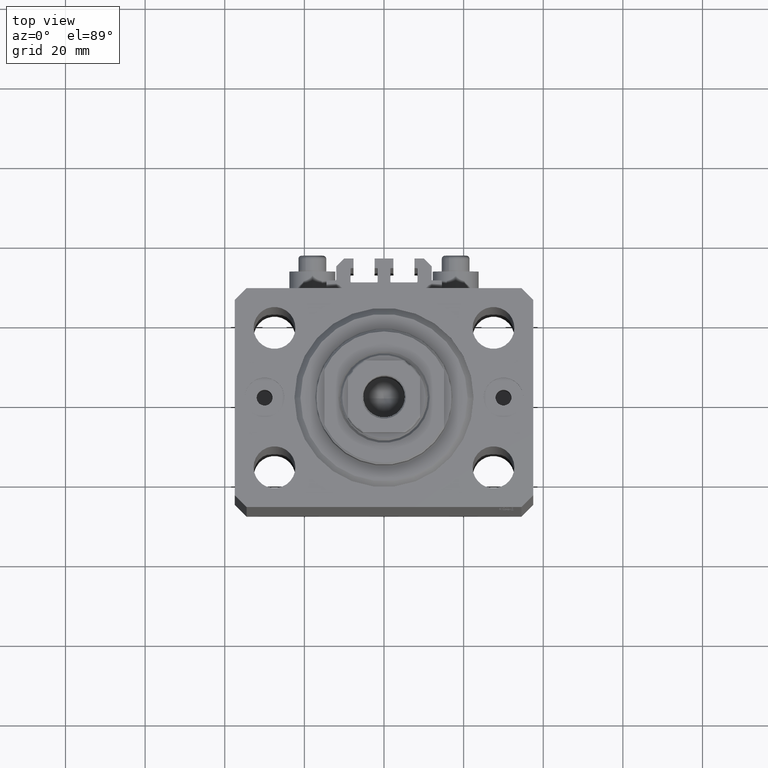
[diagram: clean part render]
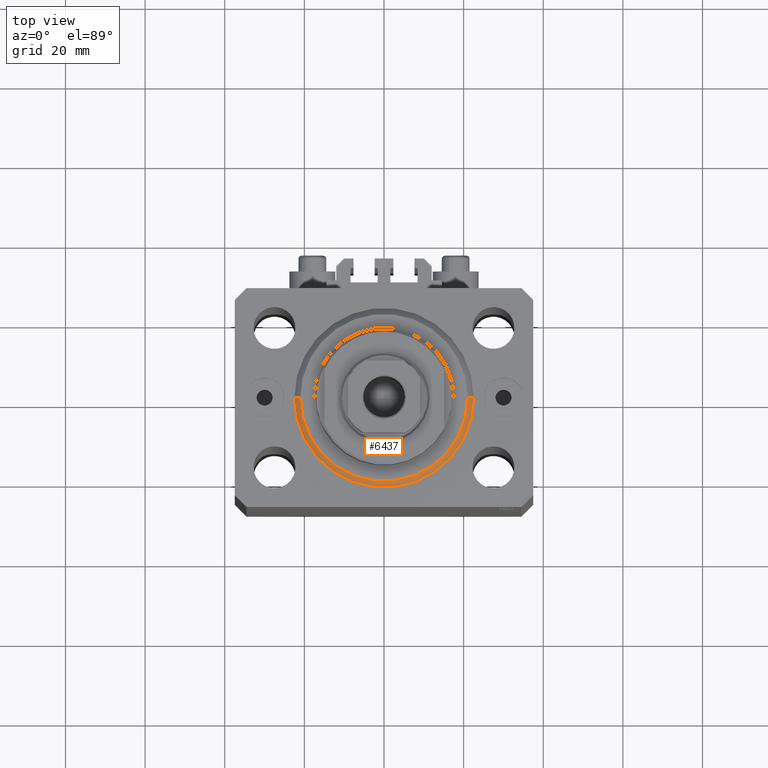
[diagram: same view with one face highlighted and labeled with its STEP entity id]
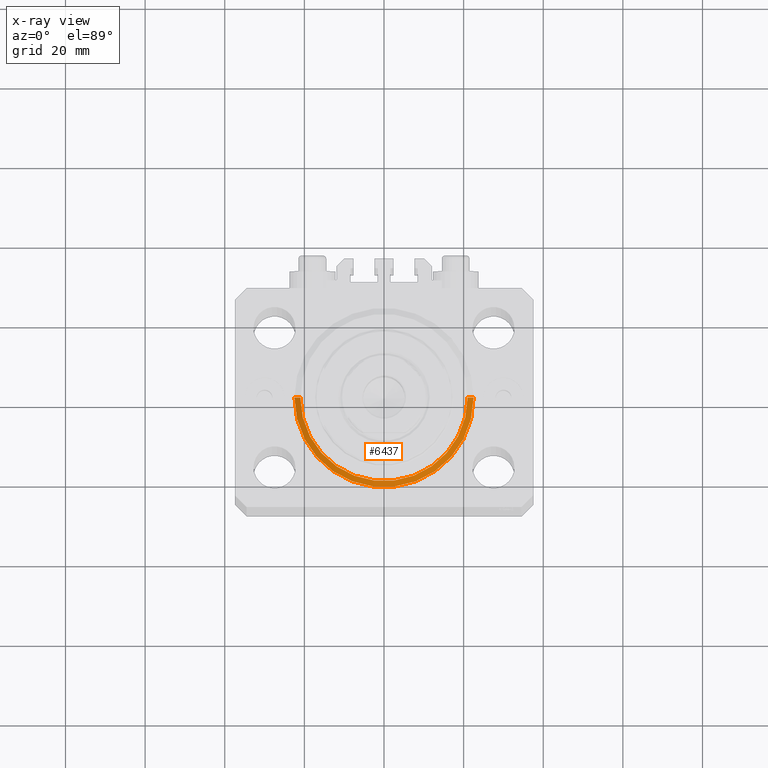
[diagram: x-ray of the same camera — body ghosted, the highlighted face saturated]
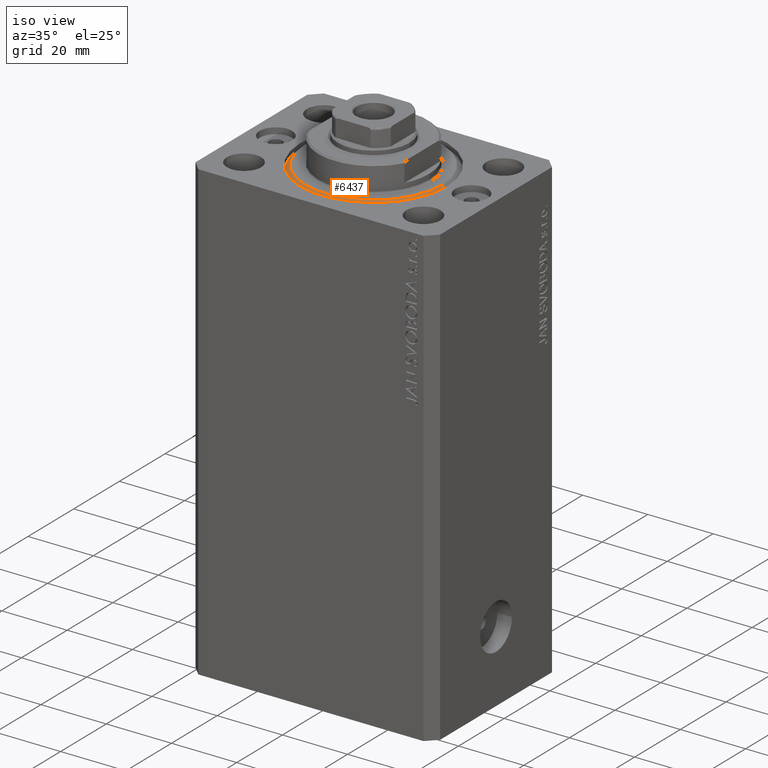
[diagram: same view with one face highlighted and labeled with its STEP entity id]
A machine part, top view. The second image highlights one B-rep face of the part: STEP entity #6437.
The next image is the same camera in x-ray: the body ghosted, the highlighted face saturated — about 0% of this face is hidden behind the body in this view.
A second angle (iso view) of the same face is appended — the face is thin or edge-on in the first view.
In plain terms, the highlighted conical surface has half-angle 45 deg.
Its self-contained STEP definition (entity closure, byte-faithful):
#360 = CIRCLE ( 'NONE', #12558, 20.99999999999998934 ) ;
#2845 = ORIENTED_EDGE ( 'NONE', *, *, #40060, .T. ) ;
#3239 = DIRECTION ( 'NONE',  ( 0.7071067811865500152, 0.000000000000000000, 0.7071067811865451302 ) ) ;
#5097 = VERTEX_POINT ( 'NONE', #6713 ) ;
#5681 = CARTESIAN_POINT ( 'NONE',  ( 20.99999999999998934, 0.000000000000000000, 0.000000000000000000 ) ) ;
#6437 = ADVANCED_FACE ( 'NONE', ( #17844 ), #24995, .T. ) ;
#6591 = LINE ( 'NONE', #17823, #41509 ) ;
#6713 = CARTESIAN_POINT ( 'NONE',  ( -22.50000000000000355, 0.000000000000000000, 1.500000000000001332 ) ) ;
#8570 = CARTESIAN_POINT ( 'NONE',  ( -20.99999999999998934, 2.663606788145492628E-15, 0.000000000000000000 ) ) ;
#9631 = EDGE_LOOP ( 'NONE', ( #34079, #44510, #2845, #33163 ) ) ;
#11642 = CARTESIAN_POINT ( 'NONE',  ( 22.50000000000000355, 2.755455298081545172E-15, 1.500000000000001332 ) ) ;
#12558 = AXIS2_PLACEMENT_3D ( 'NONE', #14465, #32380, #28334 ) ;
#14077 = LINE ( 'NONE', #39852, #47243 ) ;
#14253 = DIRECTION ( 'NONE',  ( -0.000000000000000000, -0.000000000000000000, 1.000000000000000000 ) ) ;
#14465 = CARTESIAN_POINT ( 'NONE',  ( 0.000000000000000000, 0.000000000000000000, 0.000000000000000000 ) ) ;
#17823 = CARTESIAN_POINT ( 'NONE',  ( 22.50000000000000355, 0.000000000000000000, 1.500000000000001332 ) ) ;
#17844 = FACE_OUTER_BOUND ( 'NONE', #9631, .T. ) ;
#19663 = AXIS2_PLACEMENT_3D ( 'NONE', #46955, #14253, #21655 ) ;
#21655 = DIRECTION ( 'NONE',  ( 1.000000000000000000, 0.000000000000000000, 0.000000000000000000 ) ) ;
#21716 = DIRECTION ( 'NONE',  ( -0.7071067811865500152, 8.659560562354963673E-17, 0.7071067811865451302 ) ) ;
#23305 = AXIS2_PLACEMENT_3D ( 'NONE', #33467, #47068, #28937 ) ;
#24401 = EDGE_CURVE ( 'NONE', #26420, #5097, #14077, .T. ) ;
#24995 = CONICAL_SURFACE ( 'NONE', #19663, 22.50000000000000355, 0.7853981633974517207 ) ;
#26420 = VERTEX_POINT ( 'NONE', #8570 ) ;
#28334 = DIRECTION ( 'NONE',  ( 1.000000000000000000, 0.000000000000000000, 0.000000000000000000 ) ) ;
#28937 = DIRECTION ( 'NONE',  ( 1.000000000000000000, 0.000000000000000000, 0.000000000000000000 ) ) ;
#29332 = VERTEX_POINT ( 'NONE', #5681 ) ;
#32380 = DIRECTION ( 'NONE',  ( -0.000000000000000000, -0.000000000000000000, -1.000000000000000000 ) ) ;
#33163 = ORIENTED_EDGE ( 'NONE', *, *, #41515, .F. ) ;
#33467 = CARTESIAN_POINT ( 'NONE',  ( 0.000000000000000000, 0.000000000000000000, 1.500000000000001332 ) ) ;
#34079 = ORIENTED_EDGE ( 'NONE', *, *, #24401, .F. ) ;
#39829 = VERTEX_POINT ( 'NONE', #11642 ) ;
#39852 = CARTESIAN_POINT ( 'NONE',  ( -22.50000000000000355, 2.755455298081545172E-15, 1.500000000000001332 ) ) ;
#40060 = EDGE_CURVE ( 'NONE', #29332, #39829, #6591, .T. ) ;
#40077 = EDGE_CURVE ( 'NONE', #29332, #26420, #360, .T. ) ;
#41509 = VECTOR ( 'NONE', #3239, 1000.000000000000114 ) ;
#41515 = EDGE_CURVE ( 'NONE', #5097, #39829, #44616, .T. ) ;
#44510 = ORIENTED_EDGE ( 'NONE', *, *, #40077, .F. ) ;
#44616 = CIRCLE ( 'NONE', #23305, 22.50000000000000355 ) ;
#46955 = CARTESIAN_POINT ( 'NONE',  ( 0.000000000000000000, 0.000000000000000000, 1.500000000000001332 ) ) ;
#47068 = DIRECTION ( 'NONE',  ( -0.000000000000000000, -0.000000000000000000, 1.000000000000000000 ) ) ;
#47243 = VECTOR ( 'NONE', #21716, 1000.000000000000114 ) ;